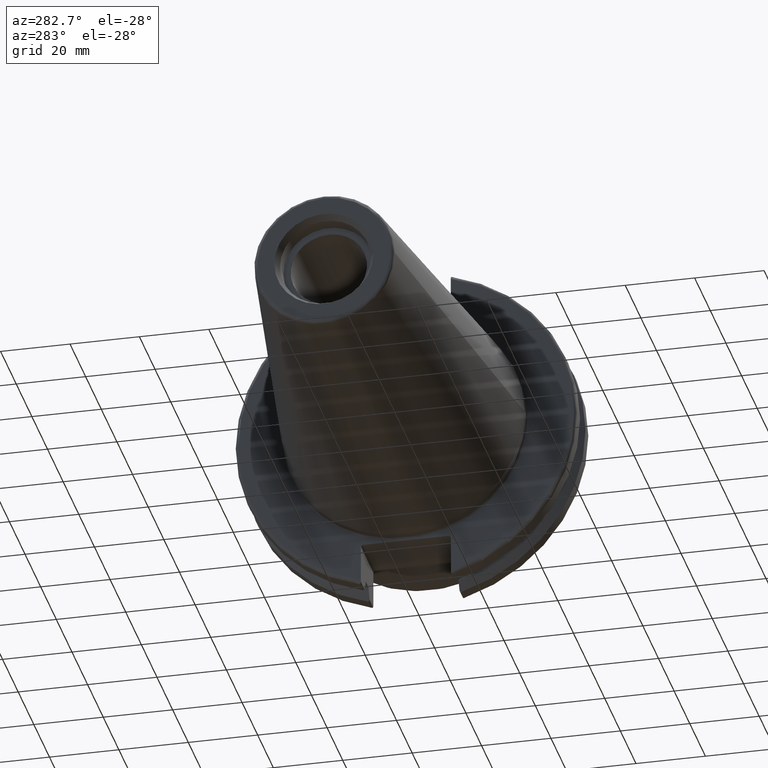
[diagram: clean part render]
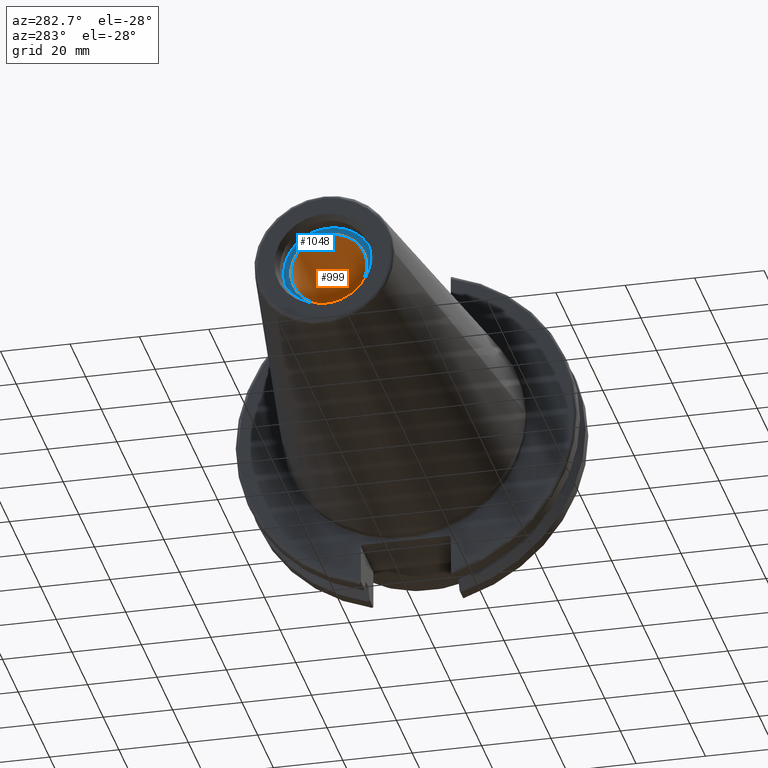
[diagram: same view with the hole feature highlighted: cylindrical wall and planar end face, labeled with their STEP entity ids]
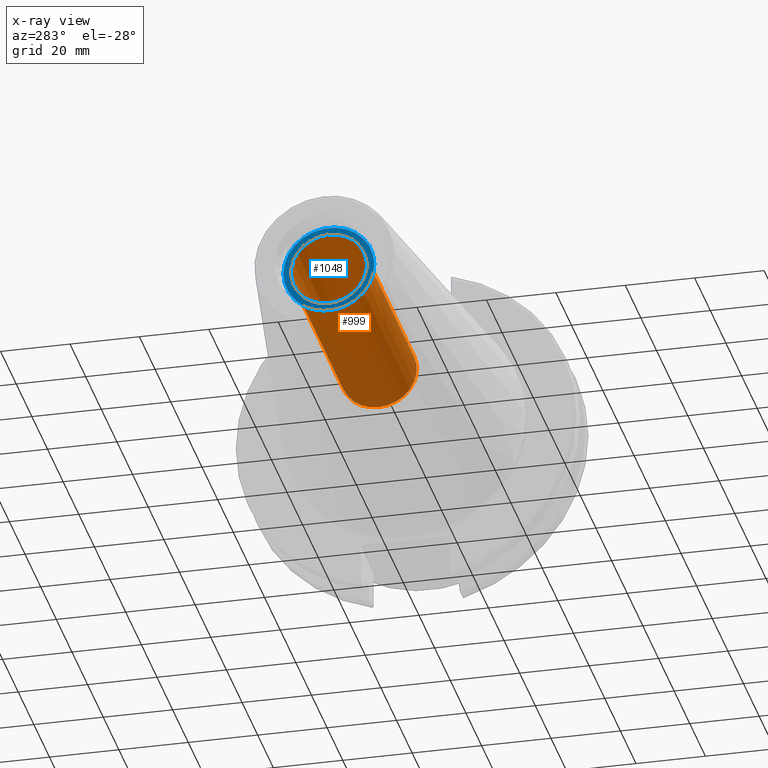
[diagram: x-ray of the same camera — body ghosted, the hole faces saturated]
A machine part, auxiliary view. The highlighted faces form one hole feature of diameter 21.971 mm: the cylindrical wall (entity #999, orange) and its adjacent planar end face (entity #1048, blue) — they share a circular edge in the B-rep.
The next image is the same camera in x-ray (body ghosted, the hole faces saturated) — the bore reads through the body.
Wall:
#111=FACE_OUTER_BOUND('',#172,.T.);
#172=EDGE_LOOP('',(#711,#712,#713,#714));
#232=LINE('',#1528,#301);
#301=VECTOR('',#1247,10.9855);
#380=CIRCLE('',#1097,10.9855);
#381=CIRCLE('',#1099,10.9855);
#429=VERTEX_POINT('',#1521);
#431=VERTEX_POINT('',#1526);
#537=EDGE_CURVE('',#429,#429,#380,.T.);
#539=EDGE_CURVE('',#431,#431,#381,.T.);
#540=EDGE_CURVE('',#431,#429,#232,.T.);
#711=ORIENTED_EDGE('',*,*,#539,.F.);
#712=ORIENTED_EDGE('',*,*,#540,.T.);
#713=ORIENTED_EDGE('',*,*,#537,.F.);
#714=ORIENTED_EDGE('',*,*,#540,.F.);
#979=CYLINDRICAL_SURFACE('',#1098,10.9855);
#999=ADVANCED_FACE('',(#111),#979,.F.);
#1097=AXIS2_PLACEMENT_3D('',#1522,#1240,#1241);
#1098=AXIS2_PLACEMENT_3D('',#1525,#1243,#1244);
#1099=AXIS2_PLACEMENT_3D('',#1527,#1245,#1246);
#1240=DIRECTION('center_axis',(-1.,0.,0.));
#1241=DIRECTION('ref_axis',(0.,0.,1.));
#1243=DIRECTION('center_axis',(-1.,0.,0.));
#1244=DIRECTION('ref_axis',(0.,0.,1.));
#1245=DIRECTION('center_axis',(1.,0.,0.));
#1246=DIRECTION('ref_axis',(0.,0.,1.));
#1247=DIRECTION('',(1.,0.,0.));
#1521=CARTESIAN_POINT('',(-31.6,-1.34533574120333E-15,-10.9855));
#1522=CARTESIAN_POINT('Origin',(-31.6,0.,0.));
#1525=CARTESIAN_POINT('Origin',(-66.6,0.,0.));
#1526=CARTESIAN_POINT('',(-95.25,1.34533574120333E-15,-10.9855));
#1527=CARTESIAN_POINT('Origin',(-95.25,0.,0.));
#1528=CARTESIAN_POINT('',(-66.6,-1.34533574120333E-15,-10.9855));
End face:
#63=FACE_BOUND('',#226,.T.);
#91=PLANE('',#1183);
#160=FACE_OUTER_BOUND('',#225,.T.);
#225=EDGE_LOOP('',(#975));
#226=EDGE_LOOP('',(#976));
#381=CIRCLE('',#1099,10.9855);
#415=CIRCLE('',#1179,13.1);
#431=VERTEX_POINT('',#1526);
#516=VERTEX_POINT('',#1912);
#539=EDGE_CURVE('',#431,#431,#381,.T.);
#666=EDGE_CURVE('',#516,#516,#415,.T.);
#975=ORIENTED_EDGE('',*,*,#666,.F.);
#976=ORIENTED_EDGE('',*,*,#539,.T.);
#1048=ADVANCED_FACE('',(#160,#63),#91,.T.);
#1099=AXIS2_PLACEMENT_3D('',#1527,#1245,#1246);
#1179=AXIS2_PLACEMENT_3D('',#1913,#1466,#1467);
#1183=AXIS2_PLACEMENT_3D('',#1921,#1477,#1478);
#1245=DIRECTION('center_axis',(1.,0.,0.));
#1246=DIRECTION('ref_axis',(0.,0.,1.));
#1466=DIRECTION('center_axis',(1.,0.,0.));
#1467=DIRECTION('ref_axis',(0.,0.,-1.));
#1477=DIRECTION('center_axis',(-1.,0.,0.));
#1478=DIRECTION('ref_axis',(0.,0.,1.));
#1526=CARTESIAN_POINT('',(-95.25,1.34533574120333E-15,-10.9855));
#1527=CARTESIAN_POINT('Origin',(-95.25,0.,0.));
#1912=CARTESIAN_POINT('',(-95.25,-13.1,-1.60428730688303E-15));
#1913=CARTESIAN_POINT('Origin',(-95.25,0.,0.));
#1921=CARTESIAN_POINT('Origin',(-95.25,13.1,0.));